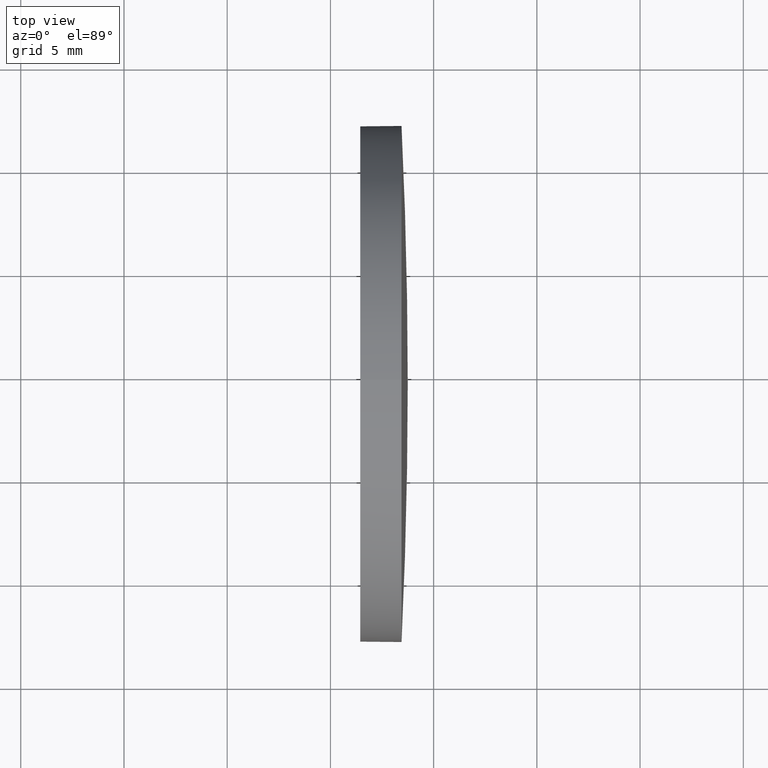
[diagram: clean part render]
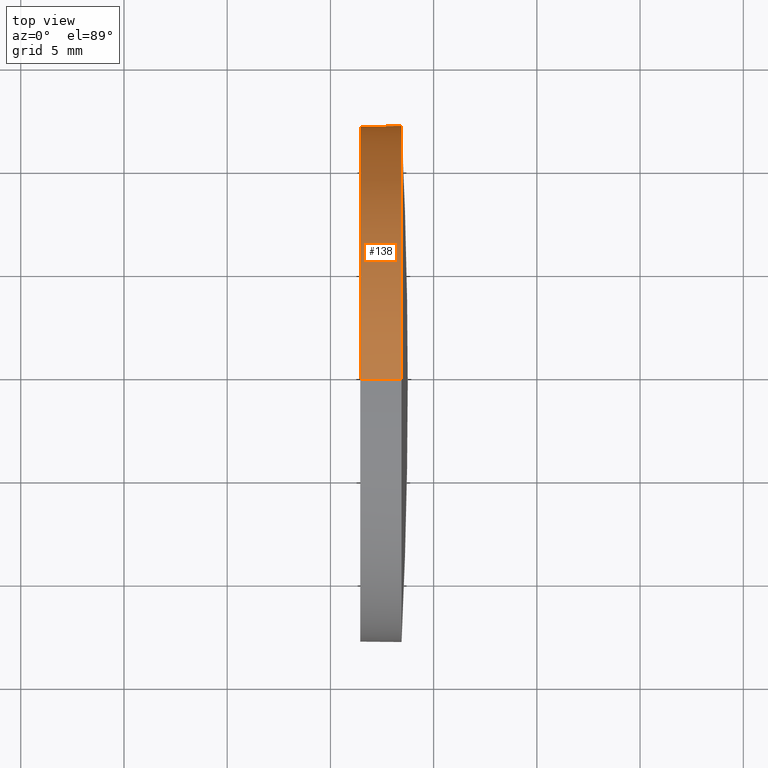
[diagram: same view with one face highlighted and labeled with its STEP entity id]
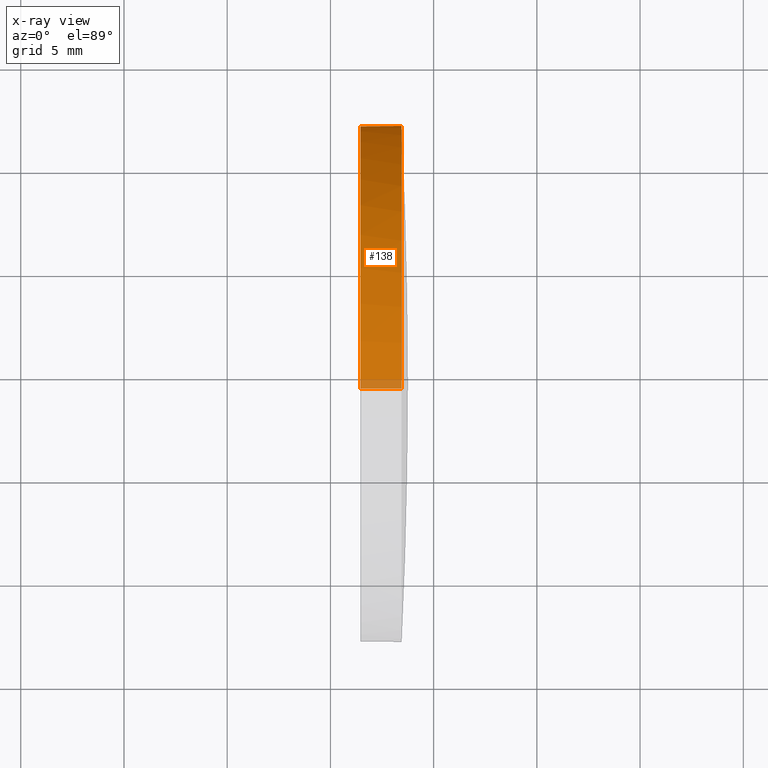
[diagram: x-ray of the same camera — body ghosted, the highlighted face saturated]
A machine part, top view. The second image highlights one B-rep face of the part: STEP entity #138.
The next image is the same camera in x-ray: the body ghosted, the highlighted face saturated — about 3% of this face is hidden behind the body in this view.
In plain terms, the highlighted cylindrical surface (partial cylindrical patch) has radius 12.5 mm, axis along (-1, -0, -0).
Its self-contained STEP definition (entity closure, byte-faithful):
#2 = ORIENTED_EDGE ( 'NONE', *, *, #152, .F. ) ;
#3 = CARTESIAN_POINT ( 'NONE',  ( 433.4454962620779400, 164.5680277828015500, -12.50000000000001100 ) ) ;
#4 = VERTEX_POINT ( 'NONE', #118 ) ;
#5 = AXIS2_PLACEMENT_3D ( 'NONE', #15, #78, #89 ) ;
#7 = EDGE_CURVE ( 'NONE', #125, #85, #184, .T. ) ;
#10 = LINE ( 'NONE', #155, #74 ) ;
#15 = CARTESIAN_POINT ( 'NONE',  ( 431.4454962620779400, 164.5680277828015500, 0.0000000000000000000 ) ) ;
#24 = CARTESIAN_POINT ( 'NONE',  ( 426.7034650201881000, 164.5680277828015500, 12.50000000000001100 ) ) ;
#27 = EDGE_CURVE ( 'NONE', #33, #174, #10, .T. ) ;
#28 = CIRCLE ( 'NONE', #167, 12.50000000000001100 ) ;
#33 = VERTEX_POINT ( 'NONE', #3 ) ;
#39 = EDGE_CURVE ( 'NONE', #125, #4, #153, .T. ) ;
#42 = AXIS2_PLACEMENT_3D ( 'NONE', #110, #111, #46 ) ;
#43 = CARTESIAN_POINT ( 'NONE',  ( 433.4454962620779400, 164.5680277828015500, 12.50000000000001100 ) ) ;
#46 = DIRECTION ( 'NONE',  ( 0.0000000000000000000, 0.0000000000000000000, 1.000000000000000000 ) ) ;
#49 = AXIS2_PLACEMENT_3D ( 'NONE', #73, #107, #64 ) ;
#55 = CIRCLE ( 'NONE', #5, 12.50000000000001100 ) ;
#64 = DIRECTION ( 'NONE',  ( 0.0000000000000000000, 0.0000000000000000000, 1.000000000000000000 ) ) ;
#65 = DIRECTION ( 'NONE',  ( -1.000000000000000000, -0.0000000000000000000, -0.0000000000000000000 ) ) ;
#73 = CARTESIAN_POINT ( 'NONE',  ( 433.4454962620779400, 164.5680277828015500, 0.0000000000000000000 ) ) ;
#74 = VECTOR ( 'NONE', #65, 1000.000000000000000 ) ;
#78 = DIRECTION ( 'NONE',  ( -1.000000000000000000, -0.0000000000000000000, -0.0000000000000000000 ) ) ;
#81 = DIRECTION ( 'NONE',  ( -1.000000000000000000, -0.0000000000000000000, -0.0000000000000000000 ) ) ;
#85 = VERTEX_POINT ( 'NONE', #176 ) ;
#89 = DIRECTION ( 'NONE',  ( 0.0000000000000000000, 0.0000000000000000000, 1.000000000000000000 ) ) ;
#96 = ORIENTED_EDGE ( 'NONE', *, *, #39, .T. ) ;
#98 = CARTESIAN_POINT ( 'NONE',  ( 431.4454962620779400, 164.5680277828015500, -12.50000000000001100 ) ) ;
#101 = CYLINDRICAL_SURFACE ( 'NONE', #42, 12.50000000000001100 ) ;
#107 = DIRECTION ( 'NONE',  ( -1.000000000000000000, -0.0000000000000000000, -0.0000000000000000000 ) ) ;
#110 = CARTESIAN_POINT ( 'NONE',  ( 426.7034650201881000, 164.5680277828015500, 0.0000000000000000000 ) ) ;
#111 = DIRECTION ( 'NONE',  ( -1.000000000000000000, -0.0000000000000000000, -0.0000000000000000000 ) ) ;
#117 = FACE_OUTER_BOUND ( 'NONE', #133, .T. ) ;
#118 = CARTESIAN_POINT ( 'NONE',  ( 433.4454962620779400, 177.0680277828018900, 1.530808498934205900E-015 ) ) ;
#125 = VERTEX_POINT ( 'NONE', #43 ) ;
#133 = EDGE_LOOP ( 'NONE', ( #149, #136, #2, #146, #96 ) ) ;
#135 = VECTOR ( 'NONE', #166, 1000.000000000000000 ) ;
#136 = ORIENTED_EDGE ( 'NONE', *, *, #27, .T. ) ;
#138 = ADVANCED_FACE ( 'NONE', ( #117 ), #101, .T. ) ;
#140 = DIRECTION ( 'NONE',  ( 0.0000000000000000000, 0.0000000000000000000, 1.000000000000000000 ) ) ;
#142 = EDGE_CURVE ( 'NONE', #4, #33, #28, .T. ) ;
#146 = ORIENTED_EDGE ( 'NONE', *, *, #7, .F. ) ;
#149 = ORIENTED_EDGE ( 'NONE', *, *, #142, .T. ) ;
#152 = EDGE_CURVE ( 'NONE', #85, #174, #55, .T. ) ;
#153 = CIRCLE ( 'NONE', #49, 12.50000000000001100 ) ;
#155 = CARTESIAN_POINT ( 'NONE',  ( 426.7034650201881000, 164.5680277828015500, -12.50000000000001100 ) ) ;
#166 = DIRECTION ( 'NONE',  ( -1.000000000000000000, -0.0000000000000000000, -0.0000000000000000000 ) ) ;
#167 = AXIS2_PLACEMENT_3D ( 'NONE', #178, #81, #140 ) ;
#174 = VERTEX_POINT ( 'NONE', #98 ) ;
#176 = CARTESIAN_POINT ( 'NONE',  ( 431.4454962620779400, 164.5680277828015500, 12.50000000000001100 ) ) ;
#178 = CARTESIAN_POINT ( 'NONE',  ( 433.4454962620779400, 164.5680277828015500, 0.0000000000000000000 ) ) ;
#184 = LINE ( 'NONE', #24, #135 ) ;